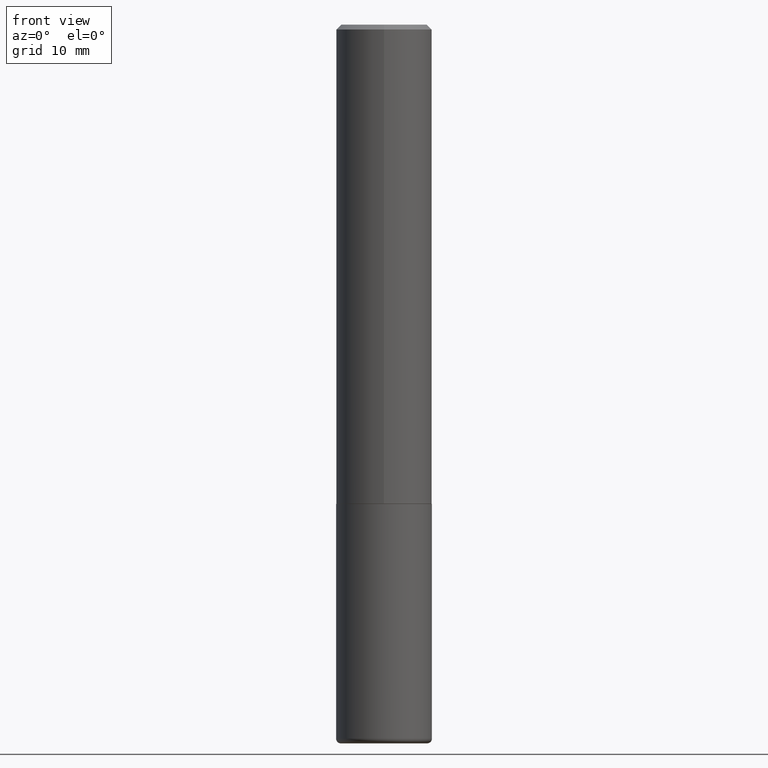
[diagram: clean part render]
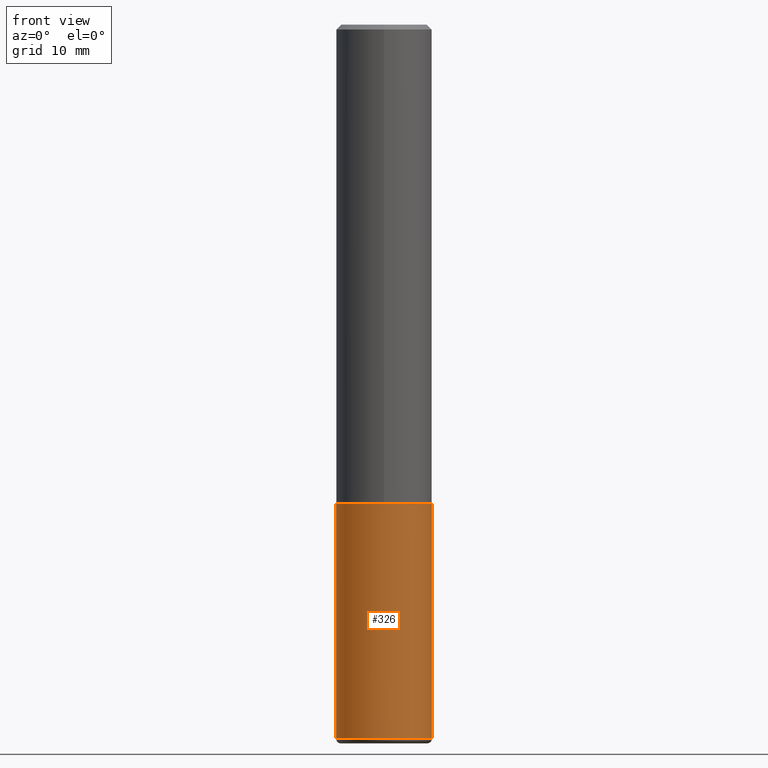
[diagram: same view with one face highlighted and labeled with its STEP entity id]
A machine part, front view. The second image highlights one B-rep face of the part: STEP entity #326.
In plain terms, the highlighted cylindrical surface (partial cylindrical patch) has radius 5 mm, axis along (-0, 0, 1).
Its self-contained STEP definition (entity closure, byte-faithful):
#28 = CARTESIAN_POINT ( 'NONE',  ( 0.1968499999999999417, -1.161546011806337053E-14, -2.933100000000000041 ) ) ;
#31 = AXIS2_PLACEMENT_3D ( 'NONE', #183, #318, #32 ) ;
#32 = DIRECTION ( 'NONE',  ( 1.000000000000000000, -6.982962677686266711E-15, 4.876176775795935793E-29 ) ) ;
#68 = CARTESIAN_POINT ( 'NONE',  ( 0.1968500000000000250, -8.247577218615273316E-15, -1.968499999999999694 ) ) ;
#76 = EDGE_LOOP ( 'NONE', ( #231, #198, #161, #154 ) ) ;
#86 = LINE ( 'NONE', #173, #121 ) ;
#95 = AXIS2_PLACEMENT_3D ( 'NONE', #133, #131, #254 ) ;
#117 = EDGE_CURVE ( 'NONE', #301, #369, #86, .T. ) ;
#121 = VECTOR ( 'NONE', #210, 39.37007874015748143 ) ;
#131 = DIRECTION ( 'NONE',  ( -2.445468806185136597E-29, 3.491481338843145583E-15, 1.000000000000000000 ) ) ;
#133 = CARTESIAN_POINT ( 'NONE',  ( 4.813905344975440714E-29, -6.872981015512730918E-15, -1.968499999999999694 ) ) ;
#136 = VERTEX_POINT ( 'NONE', #28 ) ;
#139 = DIRECTION ( 'NONE',  ( -2.445468806185136597E-29, 3.491481338843145583E-15, 1.000000000000000000 ) ) ;
#141 = EDGE_CURVE ( 'NONE', #136, #397, #267, .T. ) ;
#148 = CYLINDRICAL_SURFACE ( 'NONE', #31, 0.1968499999999999694 ) ;
#149 = VECTOR ( 'NONE', #184, 39.37007874015748143 ) ;
#154 = ORIENTED_EDGE ( 'NONE', *, *, #415, .F. ) ;
#161 = ORIENTED_EDGE ( 'NONE', *, *, #141, .T. ) ;
#173 = CARTESIAN_POINT ( 'NONE',  ( -0.1968499999999999694, 1.398703375343756999E-15, -9.682923725166782276E-30 ) ) ;
#183 = CARTESIAN_POINT ( 'NONE',  ( 0.000000000000000000, 0.000000000000000000, 0.000000000000000000 ) ) ;
#184 = DIRECTION ( 'NONE',  ( -2.445468806185136877E-29, 3.491481338843145188E-15, 1.000000000000000000 ) ) ;
#187 = CARTESIAN_POINT ( 'NONE',  ( -0.1968500000000000250, -7.158219089893024104E-15, -1.968499999999999694 ) ) ;
#198 = ORIENTED_EDGE ( 'NONE', *, *, #238, .T. ) ;
#210 = DIRECTION ( 'NONE',  ( -2.445468806185136877E-29, 3.491481338843145188E-15, 1.000000000000000000 ) ) ;
#231 = ORIENTED_EDGE ( 'NONE', *, *, #117, .F. ) ;
#238 = EDGE_CURVE ( 'NONE', #301, #136, #382, .T. ) ;
#254 = DIRECTION ( 'NONE',  ( 1.000000000000000000, -6.982962677686267499E-15, 0.000000000000000000 ) ) ;
#267 = LINE ( 'NONE', #403, #149 ) ;
#274 = CIRCLE ( 'NONE', #95, 0.1968500000000000250 ) ;
#282 = CARTESIAN_POINT ( 'NONE',  ( -0.1968499999999999417, -8.842160539617071922E-15, -2.933100000000000041 ) ) ;
#288 = AXIS2_PLACEMENT_3D ( 'NONE', #350, #139, #409 ) ;
#301 = VERTEX_POINT ( 'NONE', #282 ) ;
#315 = FACE_OUTER_BOUND ( 'NONE', #76, .T. ) ;
#318 = DIRECTION ( 'NONE',  ( -2.445468806185136597E-29, 3.491481338843145583E-15, 1.000000000000000000 ) ) ;
#326 = ADVANCED_FACE ( 'NONE', ( #315 ), #148, .T. ) ;
#350 = CARTESIAN_POINT ( 'NONE',  ( 7.172804555421624566E-29, -1.024086391496083050E-14, -2.933100000000000041 ) ) ;
#369 = VERTEX_POINT ( 'NONE', #187 ) ;
#382 = CIRCLE ( 'NONE', #288, 0.1968499999999999694 ) ;
#397 = VERTEX_POINT ( 'NONE', #68 ) ;
#403 = CARTESIAN_POINT ( 'NONE',  ( 0.1968499999999999694, -1.374596203102541411E-15, 9.598753983154298056E-30 ) ) ;
#409 = DIRECTION ( 'NONE',  ( 1.000000000000000000, -6.982962677686269866E-15, 0.000000000000000000 ) ) ;
#415 = EDGE_CURVE ( 'NONE', #369, #397, #274, .T. ) ;